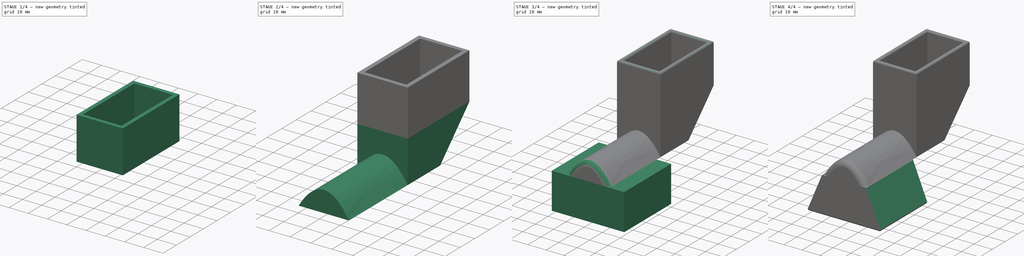
[diagram: build sequence overview — one tinted view per stage of 4, left to right]
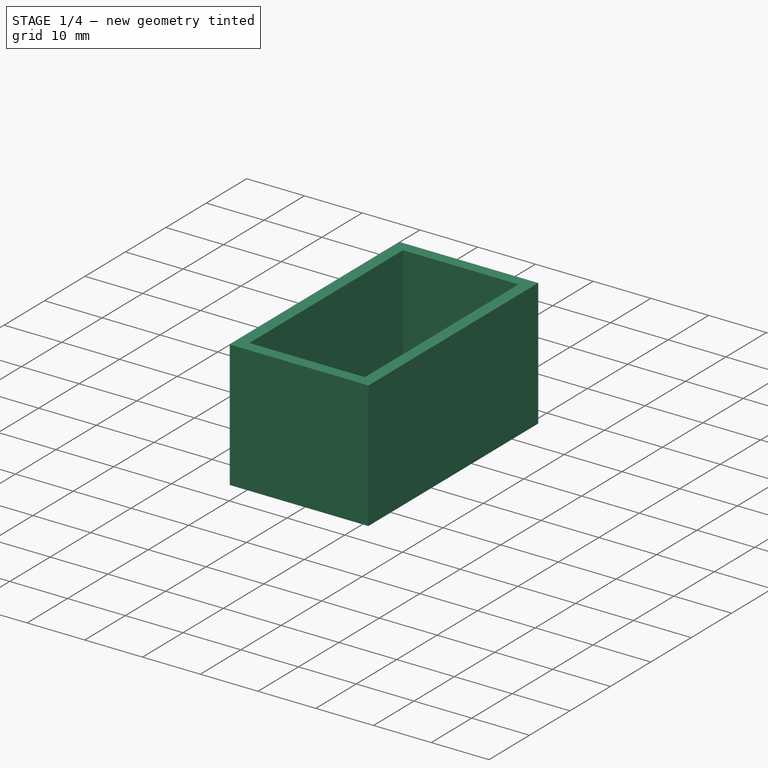
[diagram: stage 1 of 4 — iso view after this stage's code; geometry added in this stage tinted green]
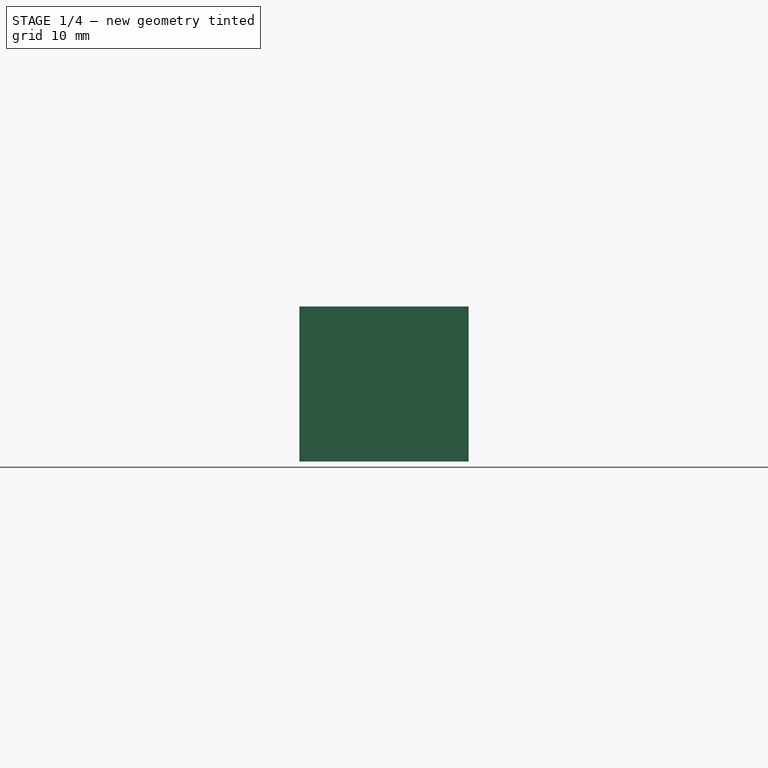
[diagram: stage 1 of 4 — front view after this stage's code; geometry added in this stage tinted green]
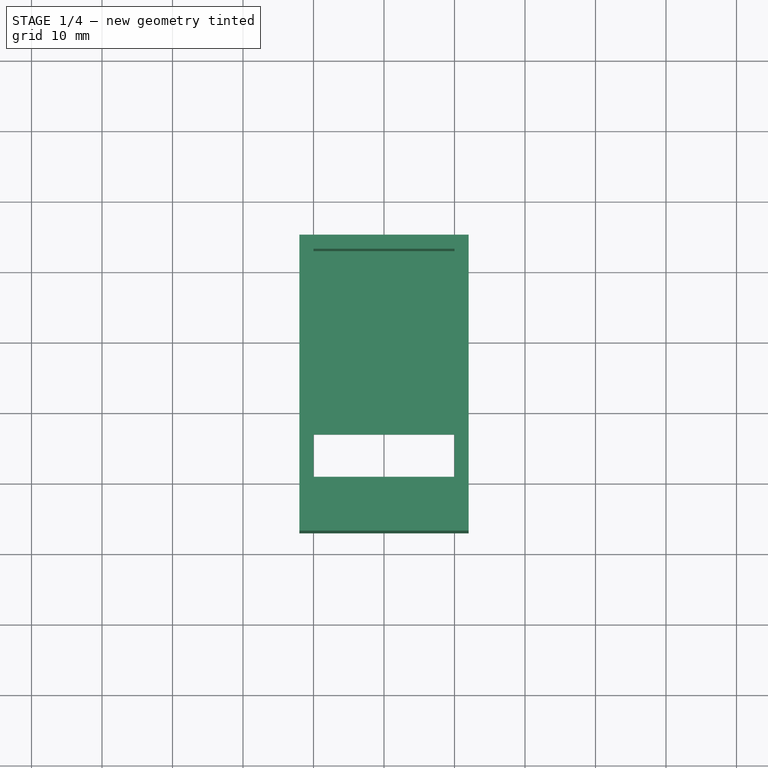
[diagram: stage 1 of 4 — top view after this stage's code; geometry added in this stage tinted green]
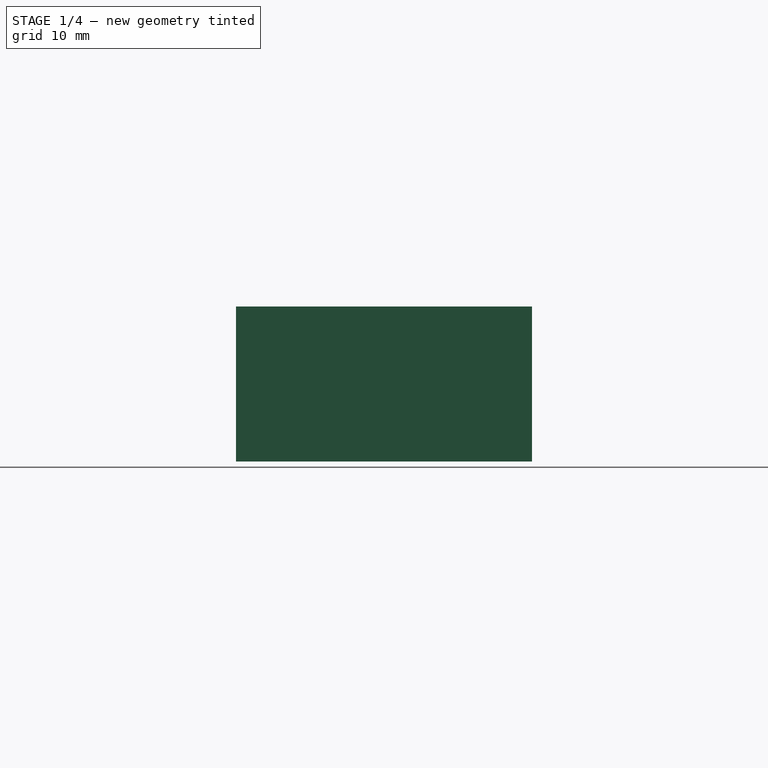
[diagram: stage 1 of 4 — right view after this stage's code; geometry added in this stage tinted green]
FCSTD DOCUMENT  (FreeCAD 0.18R4 (GitTag))
Label: Gimbal_AxisMount
License: All rights reserved
LicenseURL: http://en.wikipedia.org/wiki/All_rights_reserved
objects: Sketcher::SketchObject×5, PartDesign::Pad×4, PartDesign::Chamfer×3, PartDesign::Fillet×3, PartDesign::Pocket×2, PartDesign::Body×1
note: 24 computed .brp shape members not serialized (recipe doc carries the construction recipe); baked Part::Feature solids carry a one-line shape summary decoded from their .brp

FEATURE [Sketcher::SketchObject] Sketch
  MapMode = 5
  Support = -> [XY_Plane]
  sketch-geometry (4):
    g0: LineSegment StartX=-12 StartY=45 StartZ=0 EndX=12 EndY=45 EndZ=0
    g1: LineSegment StartX=12 StartY=45 StartZ=0 EndX=12 EndY=3 EndZ=0
    g2: LineSegment StartX=12 StartY=3 StartZ=0 EndX=-12 EndY=3 EndZ=0
    g3: LineSegment StartX=-12 StartY=3 StartZ=0 EndX=-12 EndY=45 EndZ=0
  constraints (12):
    c: Coincident(g0,g1)
    c: Coincident(g1,g2)
    c: Coincident(g2,g3)
    c: Coincident(g3,g0)
    c: Horizontal(g0)
    c: Horizontal(g2)
    c: Vertical(g1)
    c: Vertical(g3)
    c: DistanceY(g-1,g2) = 3
    c: DistanceX(g2,g2) = 24
    c: DistanceY(g1,g1) = 42
    c: DistanceX(g-1,g1) = 12
FEATURE [PartDesign::Pad] Pad
  Length = 22
  Length2 = 100
  Profile = -> Sketch
  Type = 0
FEATURE [Sketcher::SketchObject] Sketch001
  MapMode = 5
  Placement = pos=(0,0,22) rot=(0,0,1;0rad)
  Support = -> [Pad]
  sketch-geometry (4):
    g0: LineSegment StartX=-10 StartY=43 StartZ=0 EndX=10 EndY=43 EndZ=0
    g1: LineSegment StartX=10 StartY=43 StartZ=0 EndX=10 EndY=5 EndZ=0
    g2: LineSegment StartX=10 StartY=5 StartZ=0 EndX=-10 EndY=5 EndZ=0
    g3: LineSegment StartX=-10 StartY=5 StartZ=0 EndX=-10 EndY=43 EndZ=0
  constraints (12):
    c: Coincident(g0,g1)
    c: Coincident(g1,g2)
    c: Coincident(g2,g3)
    c: Coincident(g3,g0)
    c: Horizontal(g0)
    c: Horizontal(g2)
    c: Vertical(g1)
    c: Vertical(g3)
    c: DistanceY(g1,g1) = 38
    c: DistanceY(g-1,g1) = 5
    c: DistanceX(g-1,g1) = 10
    c: DistanceX(g2,g2) = 20
FEATURE [PartDesign::Pocket] Pocket
  BaseFeature = -> Pad
  Length = 20
  Length2 = 100
  Profile = -> Sketch001
  Type = 0
FEATURE [Sketcher::SketchObject] Sketch002
  MapMode = 5
  Placement = pos=(0,0,2) rot=(0,0,1;0rad)
  Support = -> [Pocket]
  sketch-geometry (4):
    g0: LineSegment StartX=-10 StartY=17 StartZ=0 EndX=10 EndY=17 EndZ=0
    g1: LineSegment StartX=10 StartY=17 StartZ=0 EndX=10 EndY=11 EndZ=0
    g2: LineSegment StartX=10 StartY=11 StartZ=0 EndX=-10 EndY=11 EndZ=0
    g3: LineSegment StartX=-10 StartY=11 StartZ=0 EndX=-10 EndY=17 EndZ=0
  constraints (12):
    c: Coincident(g0,g1)
    c: Coincident(g1,g2)
    c: Coincident(g2,g3)
    c: Coincident(g3,g0)
    c: Horizontal(g0)
    c: Horizontal(g2)
    c: Vertical(g1)
    c: Vertical(g3)
    c: DistanceX(g0,g0) = 20
    c: DistanceX(g-1,g1) = 10
    c: DistanceY(g1,g1) = 6
    c: DistanceY(g-1,g0) = 17
FEATURE [PartDesign::Pocket] Pocket001
  BaseFeature = -> Pocket
  Length = 5
  Length2 = 100
  Profile = -> Sketch002
  Type = 0
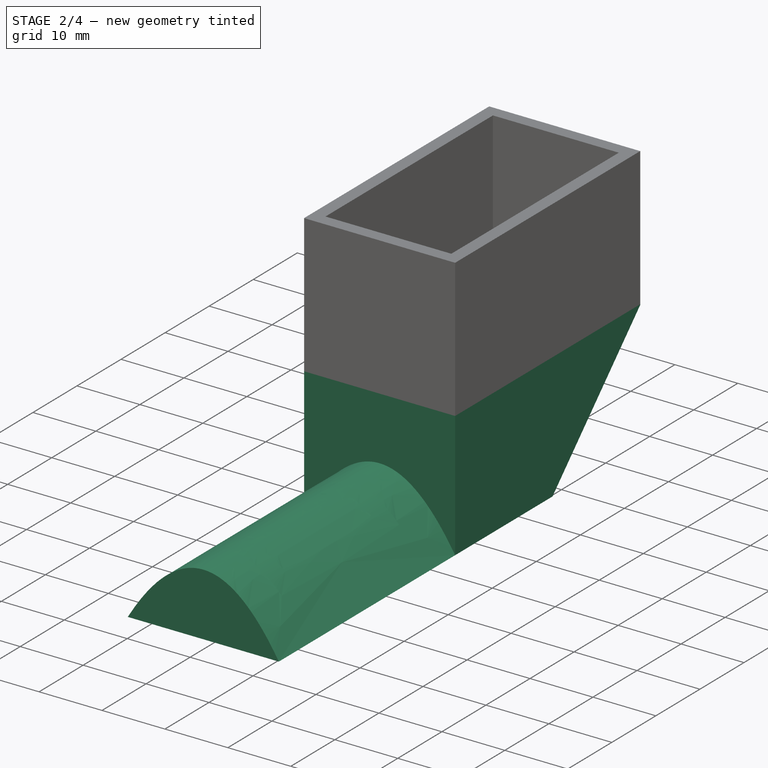
[diagram: stage 2 of 4 — iso view after this stage's code; geometry added in this stage tinted green]
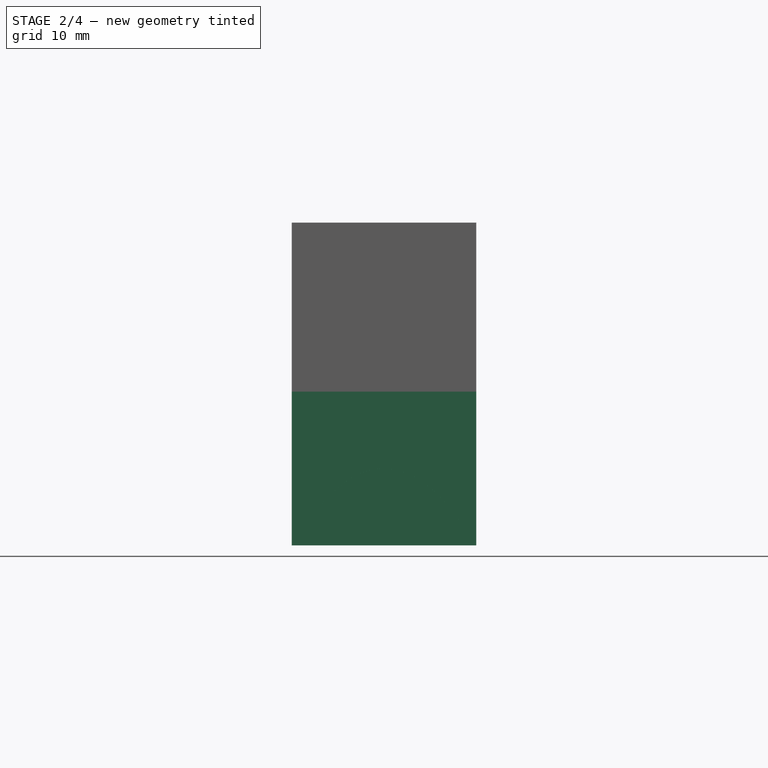
[diagram: stage 2 of 4 — front view after this stage's code; geometry added in this stage tinted green]
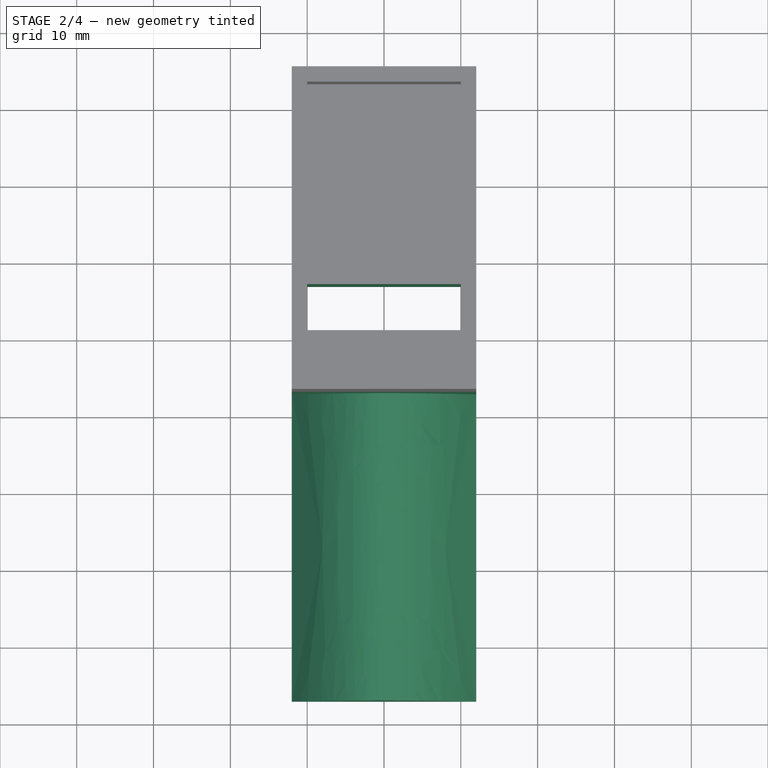
[diagram: stage 2 of 4 — top view after this stage's code; geometry added in this stage tinted green]
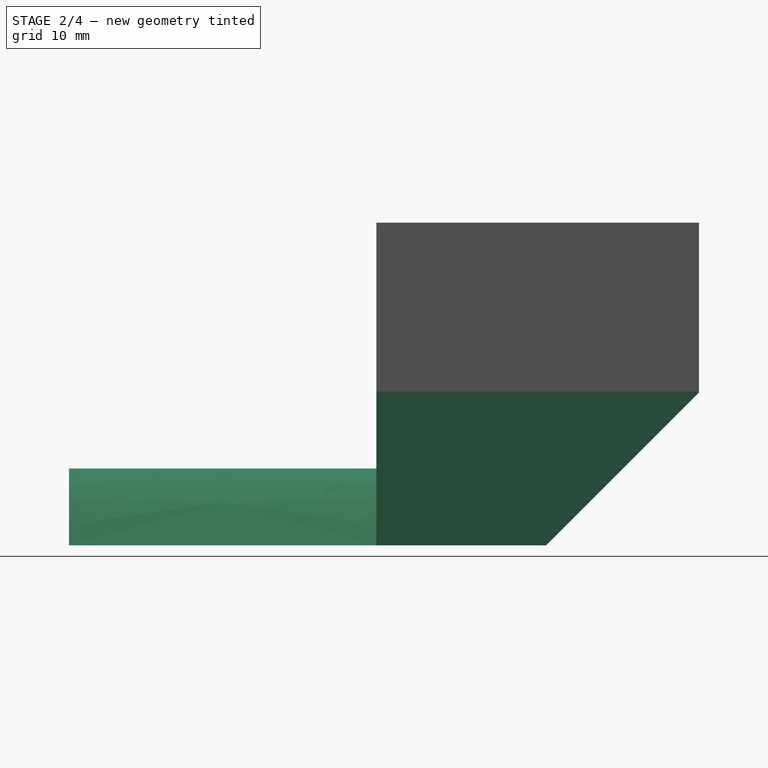
[diagram: stage 2 of 4 — right view after this stage's code; geometry added in this stage tinted green]
FEATURE [PartDesign::Pad] Pad001
  BaseFeature = -> Pocket001
  Length = 20
  Length2 = 100
  Profile = -> Pocket001 [Face4]
  Type = 0
FEATURE [PartDesign::Chamfer] Chamfer
  Base = -> Pad001 [Edge13]
  BaseFeature = -> Pad001
  Size = 19.9
FEATURE [Sketcher::SketchObject] Sketch003
  MapMode = 5
  Placement = pos=(0,3,0) rot=(1,0,0;1.5708rad)
  Support = -> [Chamfer]
  sketch-geometry (7):
    g0: LineSegment StartX=12 StartY=-20 StartZ=0 EndX=-12 EndY=-20 EndZ=0
    g1: Circle [constr] CenterX=-12 CenterY=-20 CenterZ=0 NormalX=0 NormalY=0 NormalZ=1 AngleXU=0 Radius=4
    g2: Circle [constr] CenterX=0 CenterY=0 CenterZ=0 NormalX=0 NormalY=0 NormalZ=1 AngleXU=0 Radius=4
    g3: Circle [constr] CenterX=12 CenterY=-20 CenterZ=0 NormalX=0 NormalY=0 NormalZ=1 AngleXU=0 Radius=4
    g4: BSplineCurve PolesCount=3 KnotsCount=2 Degree=2 IsPeriodic=0
    g5: GeomPoint [constr] X=-12 Y=-20 Z=0
    g6: GeomPoint [constr] X=12 Y=-20 Z=0
  constraints (14):
    c: Horizontal(g0)
    c: DistanceY(g0,g-1) = 20
    c: Coincident(g4,g0)
    c: Radius(g1) = 4
    c: Equal(g1,g2)
    c: Coincident(g2,g-1)
    c: Equal(g1,g3)
    c: InternalAlignment(g1,g4)
    c: InternalAlignment(g2,g4)
    c: InternalAlignment(g3,g4)
    c: InternalAlignment(g5,g4)
    c: InternalAlignment(g6,g4)
    c: DistanceX(g0,g-1) = 12
    c: DistanceX(g-1,g0) = 12
FEATURE [PartDesign::Pad] Pad002
  BaseFeature = -> Chamfer
  Length = 40
  Length2 = 100
  Profile = -> Sketch003
  Type = 0
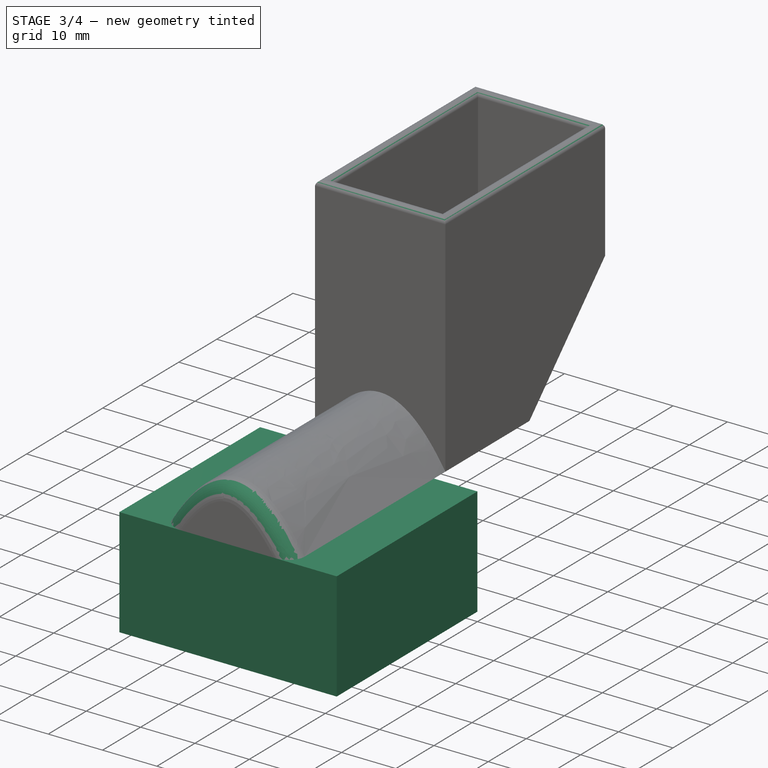
[diagram: stage 3 of 4 — iso view after this stage's code; geometry added in this stage tinted green]
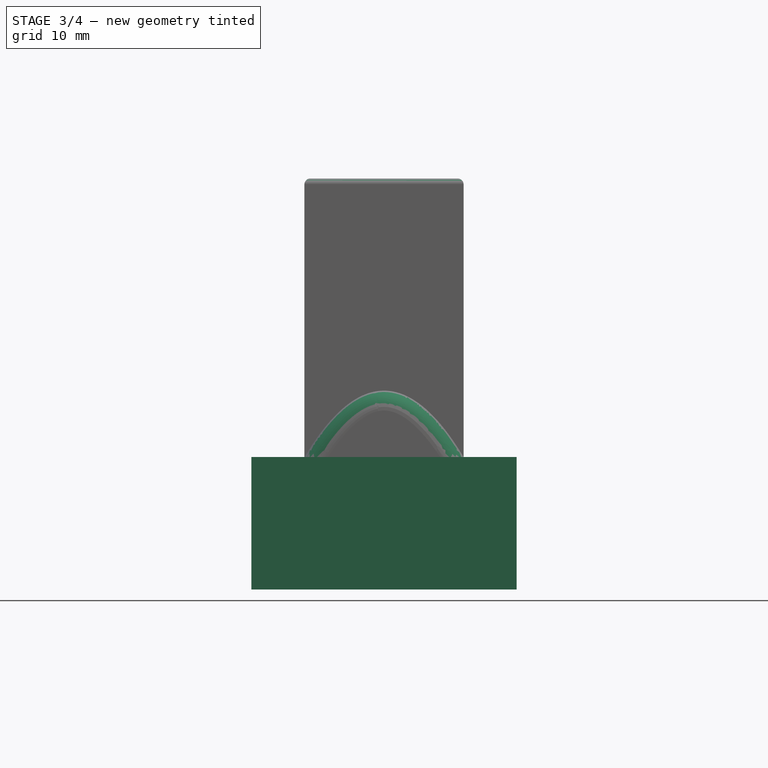
[diagram: stage 3 of 4 — front view after this stage's code; geometry added in this stage tinted green]
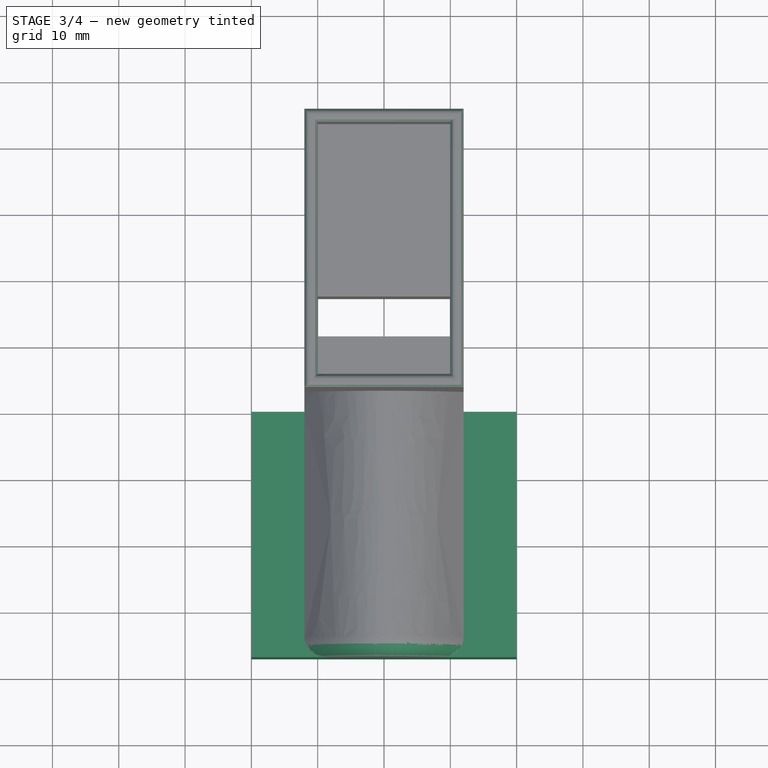
[diagram: stage 3 of 4 — top view after this stage's code; geometry added in this stage tinted green]
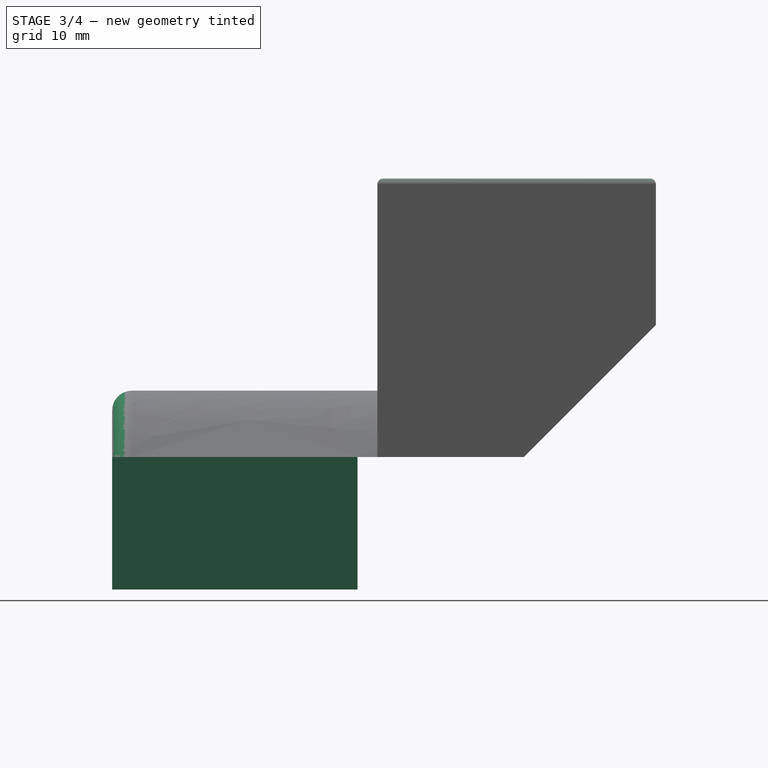
[diagram: stage 3 of 4 — right view after this stage's code; geometry added in this stage tinted green]
FEATURE [PartDesign::Fillet] Fillet
  Base = -> Pad002 [Edge44]
  BaseFeature = -> Pad002
  Radius = 3
FEATURE [PartDesign::Fillet] Fillet001
  Base = -> Fillet [Face22]
  BaseFeature = -> Fillet
  Radius = 0.9
FEATURE [Sketcher::SketchObject] Sketch004
  MapMode = 5
  Placement = pos=(0,-4.4e-15,-20) rot=(1,0,0;3.14159rad)
  Support = -> [Fillet001]
  sketch-geometry (4):
    g0: LineSegment StartX=-20 StartY=37 StartZ=0 EndX=20 EndY=37 EndZ=0
    g1: LineSegment StartX=20 StartY=37 StartZ=0 EndX=20 EndY=0 EndZ=0
    g2: LineSegment StartX=20 StartY=0 StartZ=0 EndX=-20 EndY=0 EndZ=0
    g3: LineSegment StartX=-20 StartY=0 StartZ=0 EndX=-20 EndY=37 EndZ=0
  constraints (12):
    c: Coincident(g0,g1)
    c: Coincident(g1,g2)
    c: Coincident(g2,g3)
    c: Coincident(g3,g0)
    c: Horizontal(g0)
    c: Horizontal(g2)
    c: Vertical(g1)
    c: Vertical(g3)
    c: DistanceY(g1,g1) = 37
    c: DistanceX(g0,g0) = 40
    c: DistanceY(g-1,g0) = 37
    c: DistanceX(g-1,g1) = 20
FEATURE [PartDesign::Pad] Pad003
  BaseFeature = -> Fillet001
  Length = 20
  Length2 = 100
  Profile = -> Sketch004
  Type = 0
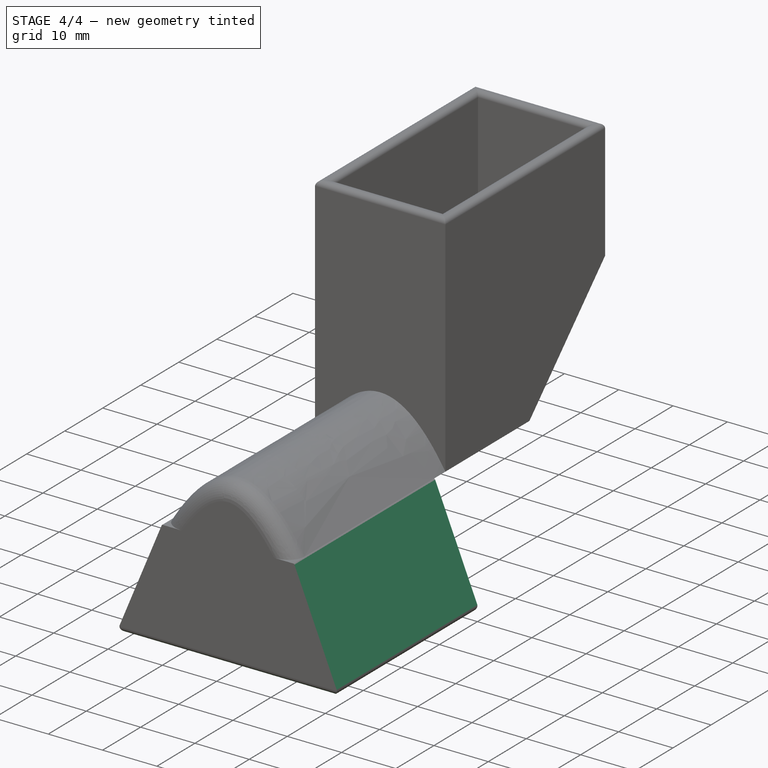
[diagram: stage 4 of 4 — iso view after this stage's code; geometry added in this stage tinted green]
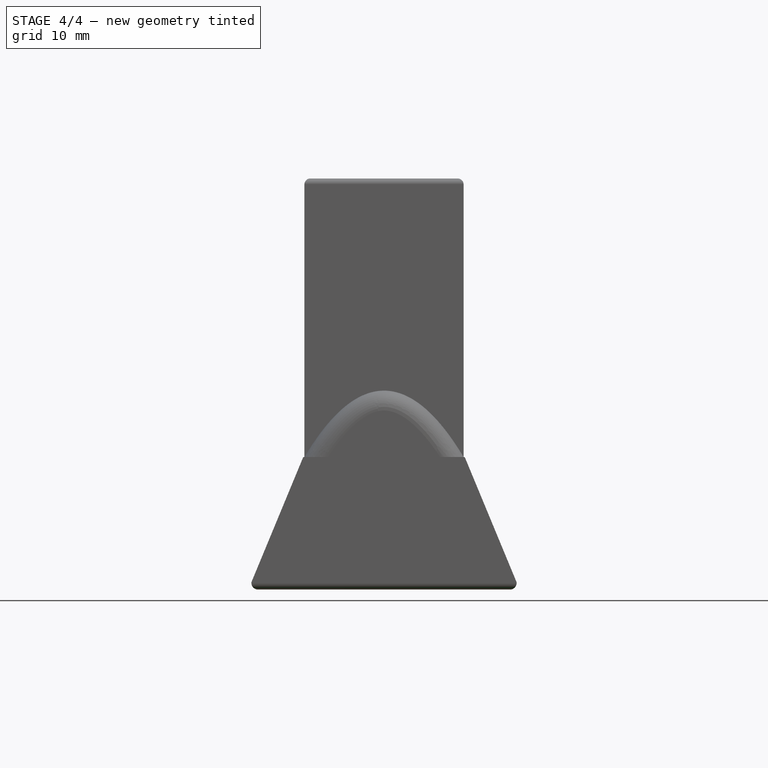
[diagram: stage 4 of 4 — front view after this stage's code; geometry added in this stage tinted green]
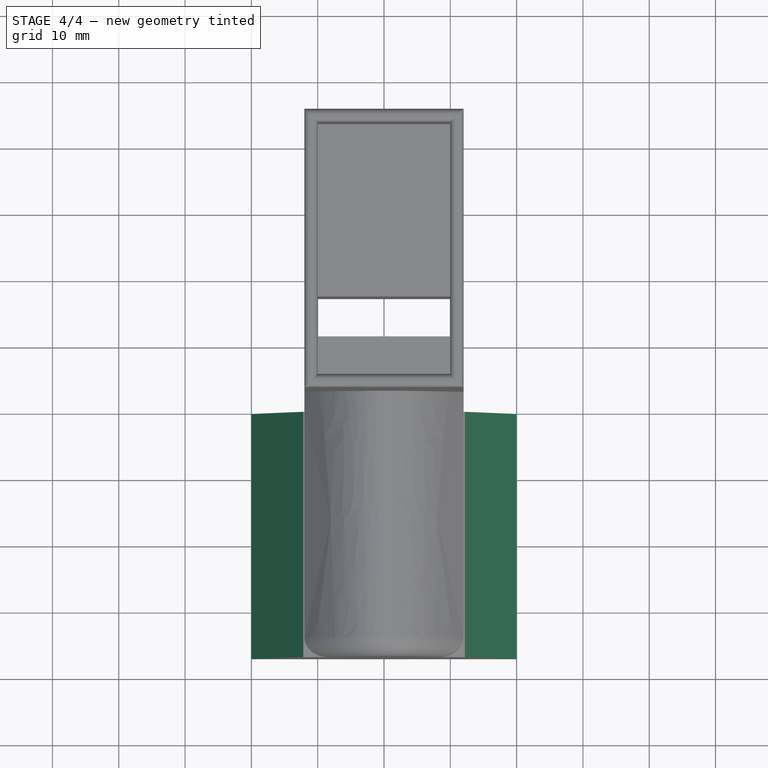
[diagram: stage 4 of 4 — top view after this stage's code; geometry added in this stage tinted green]
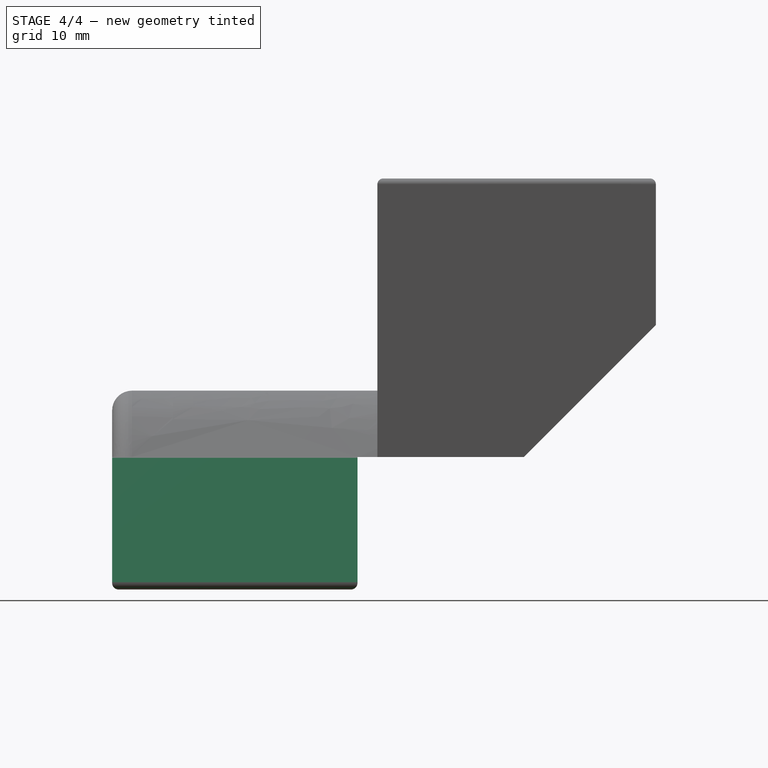
[diagram: stage 4 of 4 — right view after this stage's code; geometry added in this stage tinted green]
FEATURE [PartDesign::Fillet] Fillet002
  Base = -> Pad003 [Face44]
  BaseFeature = -> Pad003
  Radius = 1
FEATURE [PartDesign::Chamfer] Chamfer001
  Base = -> Fillet002 [Edge17,Edge9]
  BaseFeature = -> Fillet002
  Size = 7.9
FEATURE [PartDesign::Chamfer] Chamfer002
  Base = -> Chamfer001 [Edge10,Edge20]
  BaseFeature = -> Chamfer001
  Size = 11
FEATURE [PartDesign::Body] Body
  Group = -> [Sketch,Pad,Sketch001,Pocket,Sketch002,Pocket001,Pad001,Chamfer,Sketch003,Pad002,Fillet,Fillet001,Sketch004,Pad003,Fillet002,Chamfer001,Chamfer002]
  Origin = -> Origin
  Tip = -> Chamfer002
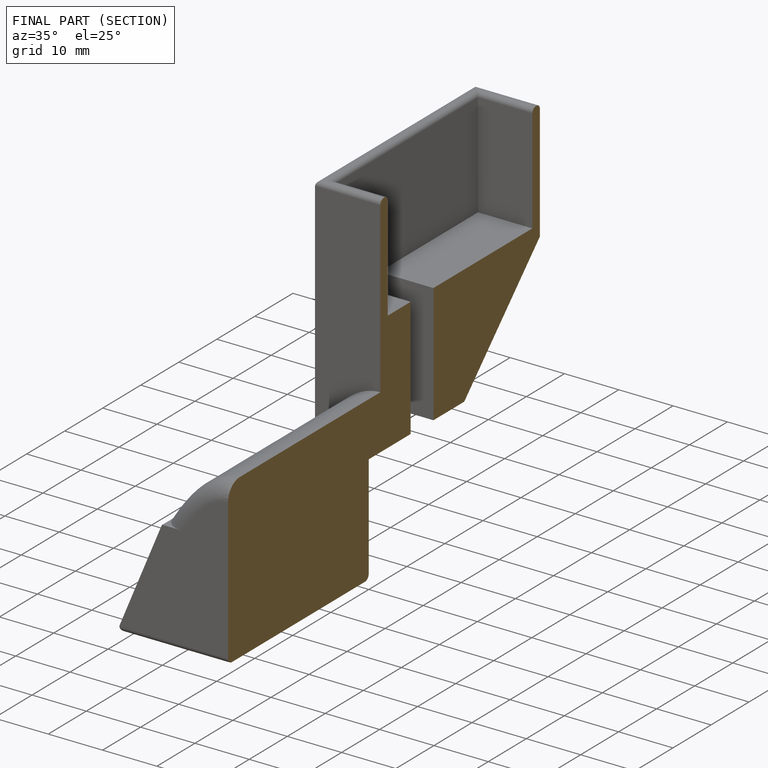
[diagram: finished part — half-section view (interior)]
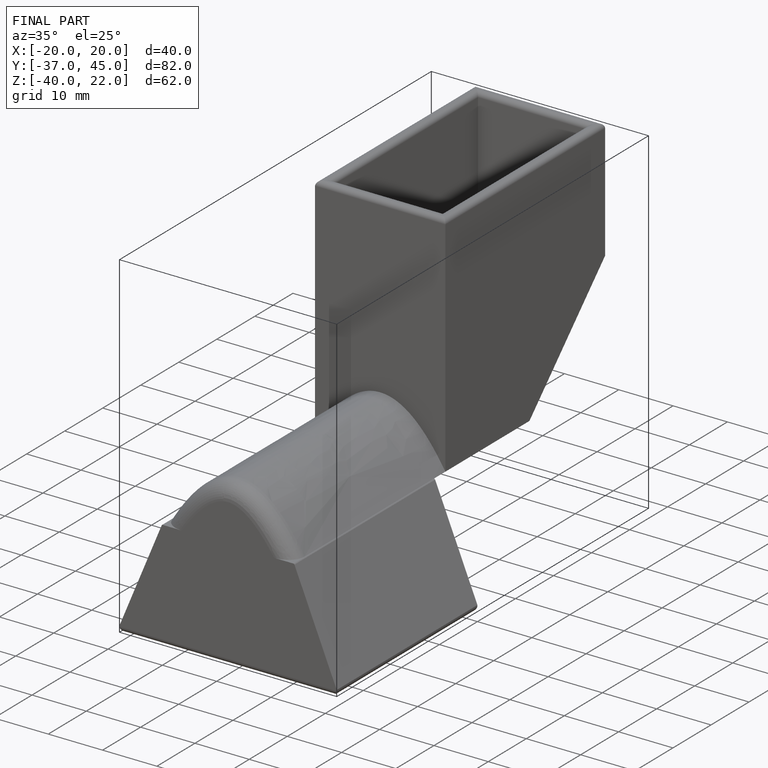
[diagram: finished part — iso view with bounding-box wireframe]
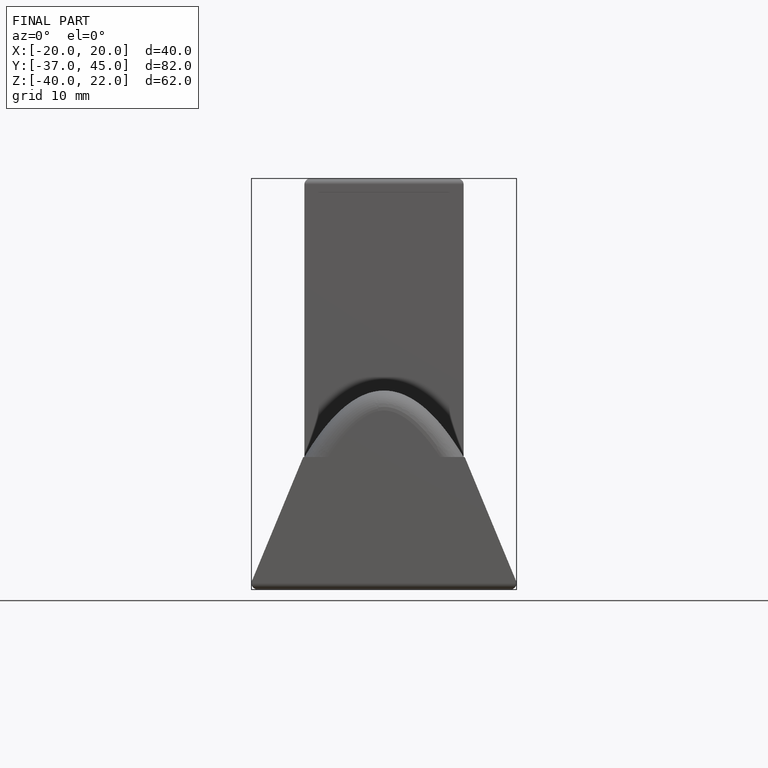
[diagram: finished part — front view with bounding-box wireframe]
